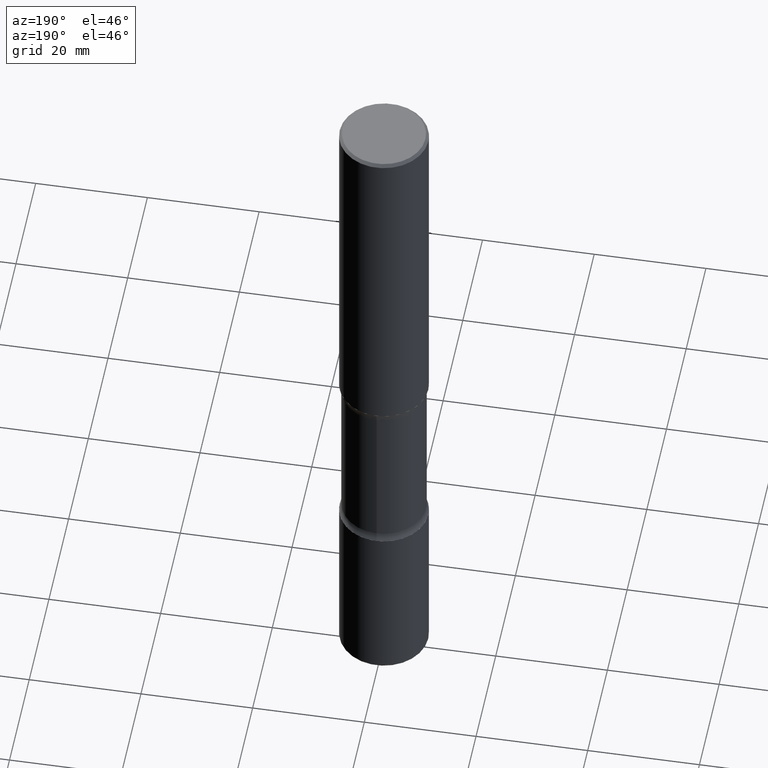
[diagram: clean part render]
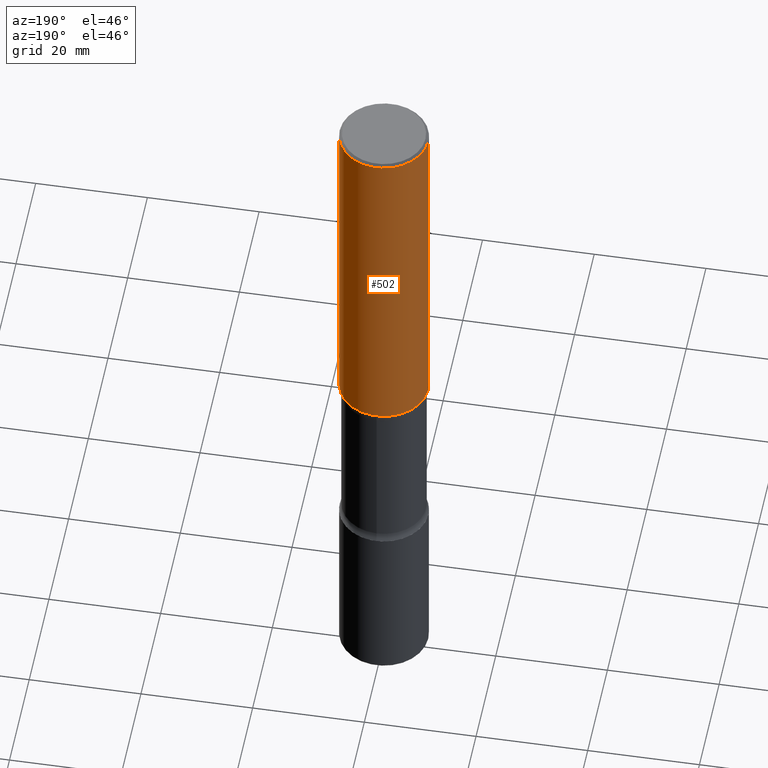
[diagram: same view with one face highlighted and labeled with its STEP entity id]
A machine part, auxiliary view. The second image highlights one B-rep face of the part: STEP entity #502.
In plain terms, the highlighted cylindrical surface (partial cylindrical patch) has radius 7.9375 mm, axis along (-0, 0, 1).
Its self-contained STEP definition (entity closure, byte-faithful):
#1 = CARTESIAN_POINT ( 'NONE',  ( -0.3124999999999998890, 2.112346210000094260E-15, -0.02000000000000006981 ) ) ;
#4 = CARTESIAN_POINT ( 'NONE',  ( 4.890937612370289799E-31, -6.982962677686315028E-17, -0.02000000000000006981 ) ) ;
#24 = VERTEX_POINT ( 'NONE', #456 ) ;
#27 = AXIS2_PLACEMENT_3D ( 'NONE', #352, #41, #399 ) ;
#37 = ORIENTED_EDGE ( 'NONE', *, *, #268, .F. ) ;
#41 = DIRECTION ( 'NONE',  ( -2.445468806185136597E-29, 3.491481338843145583E-15, 1.000000000000000000 ) ) ;
#101 = AXIS2_PLACEMENT_3D ( 'NONE', #262, #444, #112 ) ;
#112 = DIRECTION ( 'NONE',  ( 1.000000000000000000, -6.982962677686266711E-15, 4.876176775795936353E-29 ) ) ;
#122 = FACE_OUTER_BOUND ( 'NONE', #465, .T. ) ;
#171 = DIRECTION ( 'NONE',  ( -2.445468806185136877E-29, 3.491481338843145188E-15, 1.000000000000000000 ) ) ;
#182 = CIRCLE ( 'NONE', #27, 0.3125000000000002220 ) ;
#220 = VERTEX_POINT ( 'NONE', #441 ) ;
#226 = EDGE_CURVE ( 'NONE', #24, #547, #395, .T. ) ;
#230 = AXIS2_PLACEMENT_3D ( 'NONE', #4, #362, #282 ) ;
#249 = EDGE_CURVE ( 'NONE', #335, #24, #182, .T. ) ;
#251 = CARTESIAN_POINT ( 'NONE',  ( 0.3125000000000002220, -1.091087918388482329E-14, -2.499999999999999556 ) ) ;
#262 = CARTESIAN_POINT ( 'NONE',  ( 0.000000000000000000, 0.000000000000000000, 0.000000000000000000 ) ) ;
#263 = DIRECTION ( 'NONE',  ( -2.445468806185136877E-29, 3.491481338843145188E-15, 1.000000000000000000 ) ) ;
#268 = EDGE_CURVE ( 'NONE', #220, #547, #355, .T. ) ;
#278 = VECTOR ( 'NONE', #171, 39.37007874015748143 ) ;
#282 = DIRECTION ( 'NONE',  ( 1.000000000000000000, -6.982962677686266711E-15, 0.000000000000000000 ) ) ;
#285 = ORIENTED_EDGE ( 'NONE', *, *, #249, .T. ) ;
#298 = ORIENTED_EDGE ( 'NONE', *, *, #226, .T. ) ;
#303 = CARTESIAN_POINT ( 'NONE',  ( 0.3125000000000000000, -2.182175836776958347E-15, 1.523805242436230075E-29 ) ) ;
#335 = VERTEX_POINT ( 'NONE', #251 ) ;
#339 = CYLINDRICAL_SURFACE ( 'NONE', #101, 0.3125000000000000000 ) ;
#352 = CARTESIAN_POINT ( 'NONE',  ( 6.113672015462840371E-29, -8.728703347107863365E-15, -2.499999999999999556 ) ) ;
#355 = CIRCLE ( 'NONE', #230, 0.3124999999999998890 ) ;
#362 = DIRECTION ( 'NONE',  ( -2.445468806185136597E-29, 3.491481338843145583E-15, 1.000000000000000000 ) ) ;
#381 = ORIENTED_EDGE ( 'NONE', *, *, #448, .F. ) ;
#386 = LINE ( 'NONE', #303, #450 ) ;
#395 = LINE ( 'NONE', #560, #278 ) ;
#399 = DIRECTION ( 'NONE',  ( 1.000000000000000000, -6.982962677686266711E-15, 0.000000000000000000 ) ) ;
#441 = CARTESIAN_POINT ( 'NONE',  ( 0.3124999999999998890, -2.213735251080466123E-15, -0.02000000000000006981 ) ) ;
#444 = DIRECTION ( 'NONE',  ( -2.445468806185136597E-29, 3.491481338843145583E-15, 1.000000000000000000 ) ) ;
#448 = EDGE_CURVE ( 'NONE', #335, #220, #386, .T. ) ;
#450 = VECTOR ( 'NONE', #263, 39.37007874015748143 ) ;
#456 = CARTESIAN_POINT ( 'NONE',  ( -0.3125000000000002220, -2.178820437692046306E-15, -2.499999999999999556 ) ) ;
#465 = EDGE_LOOP ( 'NONE', ( #285, #298, #37, #381 ) ) ;
#502 = ADVANCED_FACE ( 'NONE', ( #122 ), #339, .T. ) ;
#547 = VERTEX_POINT ( 'NONE', #1 ) ;
#560 = CARTESIAN_POINT ( 'NONE',  ( -0.3125000000000000000, 2.220446049250313081E-15, -1.537167215704658232E-29 ) ) ;